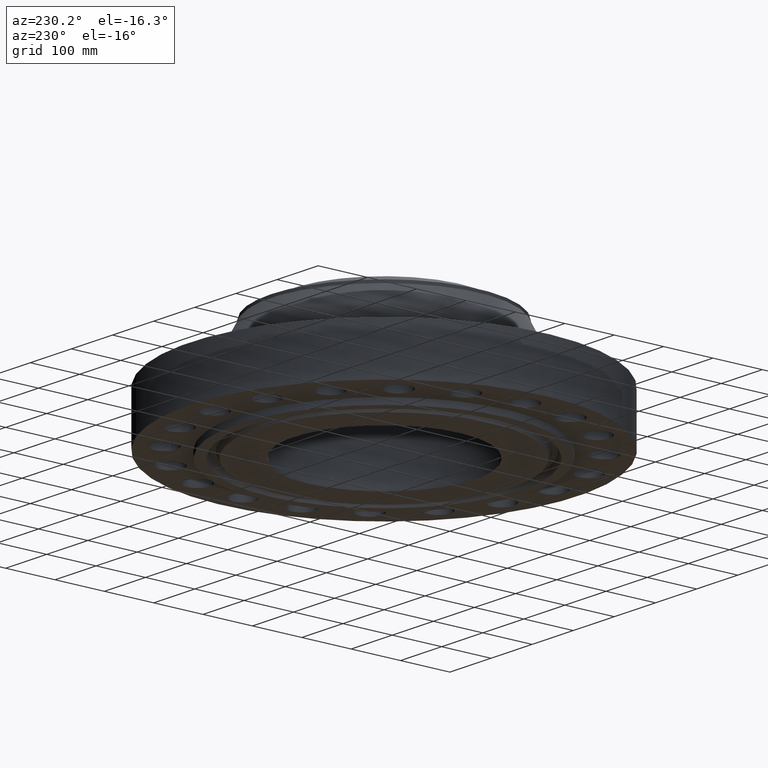
[diagram: clean part render]
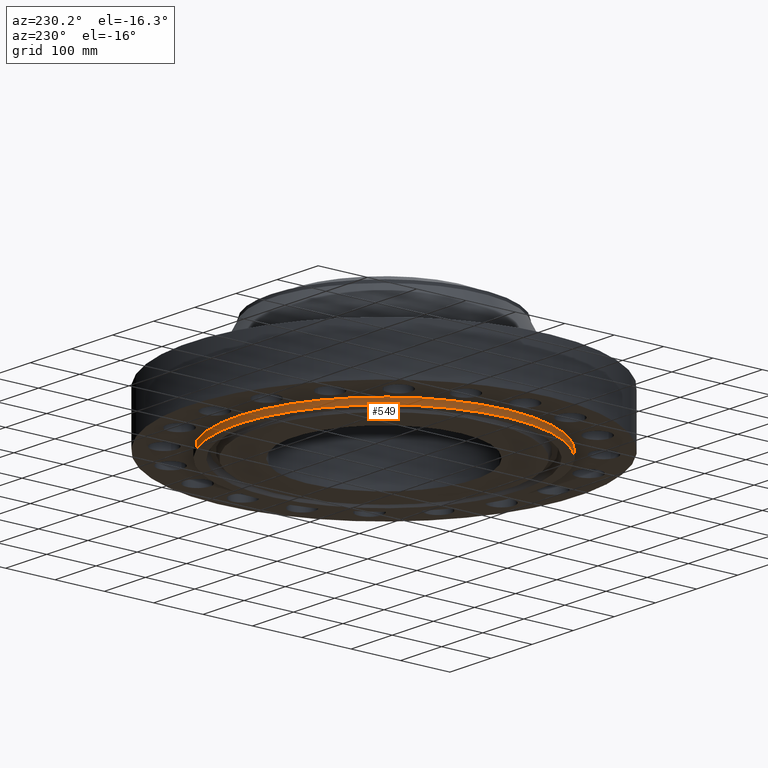
[diagram: same view with one face highlighted and labeled with its STEP entity id]
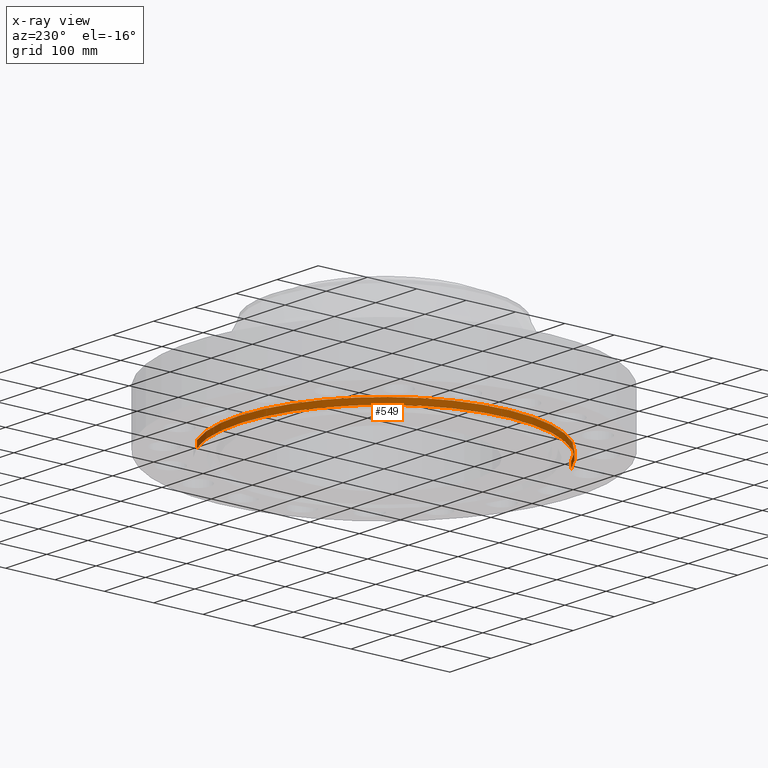
[diagram: x-ray of the same camera — body ghosted, the highlighted face saturated]
A machine part, auxiliary view. The second image highlights one B-rep face of the part: STEP entity #549.
The next image is the same camera in x-ray: the body ghosted, the highlighted face saturated — about 0% of this face is hidden behind the body in this view.
In plain terms, the highlighted cylindrical surface (partial cylindrical patch) has radius 296.863 mm, axis along (0, 0, -1).
Its self-contained STEP definition (entity closure, byte-faithful):
#513=AXIS2_PLACEMENT_3D('Cylinder Axis2P3D',#510,#511,#512) ;
#517=AXIS2_PLACEMENT_3D('Circle Axis2P3D',#515,#516,$) ;
#533=AXIS2_PLACEMENT_3D('Circle Axis2P3D',#531,#532,$) ;
#510=CARTESIAN_POINT('Axis2P3D Location',(0.,0.,4.25000000002)) ;
#515=CARTESIAN_POINT('Axis2P3D Location',(0.,0.,-0.500000000002)) ;
#519=CARTESIAN_POINT('Vertex',(-5.60328598246,-10.2567461921,-0.500000000002)) ;
#521=CARTESIAN_POINT('Vertex',(5.60328598246,10.2567461921,-0.500000000002)) ;
#524=CARTESIAN_POINT('Line Origine',(-5.60328598246,-10.2567461921,-0.250000000001)) ;
#528=CARTESIAN_POINT('Vertex',(-5.60328598246,-10.2567461921,1.1189649382E-015)) ;
#531=CARTESIAN_POINT('Axis2P3D Location',(0.,0.,1.1189649382E-015)) ;
#535=CARTESIAN_POINT('Vertex',(5.60328598246,10.2567461921,1.1189649382E-015)) ;
#538=CARTESIAN_POINT('Line Origine',(5.60328598246,10.2567461921,-0.250000000001)) ;
#511=DIRECTION('Axis2P3D Direction',(0.,0.,-0.0393700787402)) ;
#512=DIRECTION('Axis2P3D XDirection',(0.0188750212049,0.0345504945626,0.)) ;
#516=DIRECTION('Axis2P3D Direction',(0.,0.,-0.0393700787402)) ;
#525=DIRECTION('Vector Direction',(0.,0.,-0.0393700787402)) ;
#532=DIRECTION('Axis2P3D Direction',(0.,0.,-0.0393700787402)) ;
#539=DIRECTION('Vector Direction',(0.,0.,-0.0393700787402)) ;
#526=VECTOR('Line Direction',#525,0.0393700787402) ;
#540=VECTOR('Line Direction',#539,0.0393700787402) ;
#544=ORIENTED_EDGE('',*,*,#523,.F.) ;
#545=ORIENTED_EDGE('',*,*,#530,.T.) ;
#546=ORIENTED_EDGE('',*,*,#537,.T.) ;
#547=ORIENTED_EDGE('',*,*,#542,.F.) ;
#549=ADVANCED_FACE('PartBody',(#548),#514,.T.) ;
#518=CIRCLE('generated circle',#517,11.6875) ;
#534=CIRCLE('generated circle',#533,11.6875) ;
#514=CYLINDRICAL_SURFACE('generated cylinder',#513,11.6875) ;
#523=EDGE_CURVE('',#520,#522,#518,.T.) ;
#530=EDGE_CURVE('',#520,#529,#527,.F.) ;
#537=EDGE_CURVE('',#529,#536,#534,.T.) ;
#542=EDGE_CURVE('',#522,#536,#541,.F.) ;
#543=EDGE_LOOP('',(#544,#545,#546,#547)) ;
#548=FACE_OUTER_BOUND('',#543,.T.) ;
#527=LINE('Line',#524,#526) ;
#541=LINE('Line',#538,#540) ;
#520=VERTEX_POINT('',#519) ;
#522=VERTEX_POINT('',#521) ;
#529=VERTEX_POINT('',#528) ;
#536=VERTEX_POINT('',#535) ;